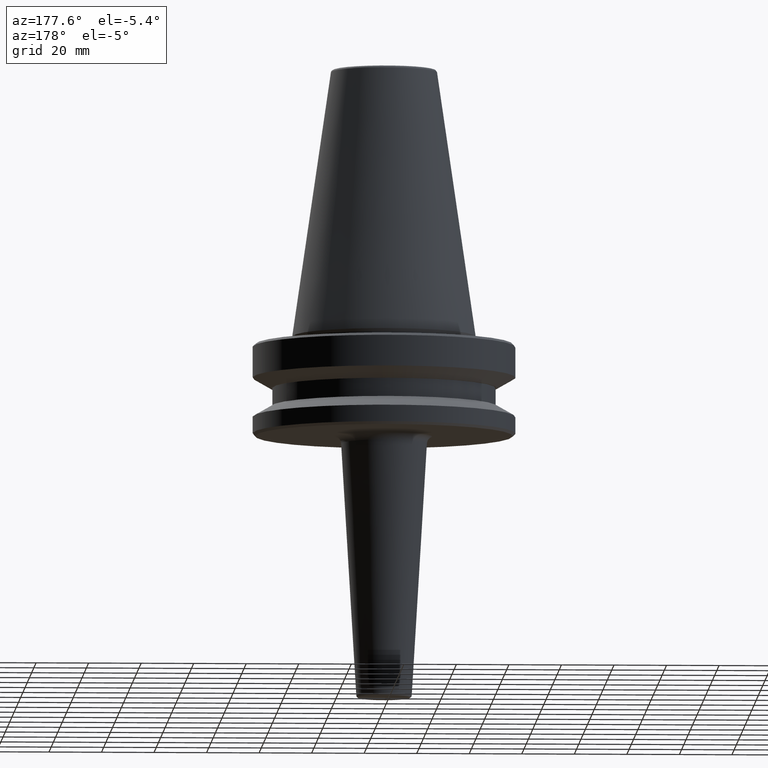
[diagram: clean part render]
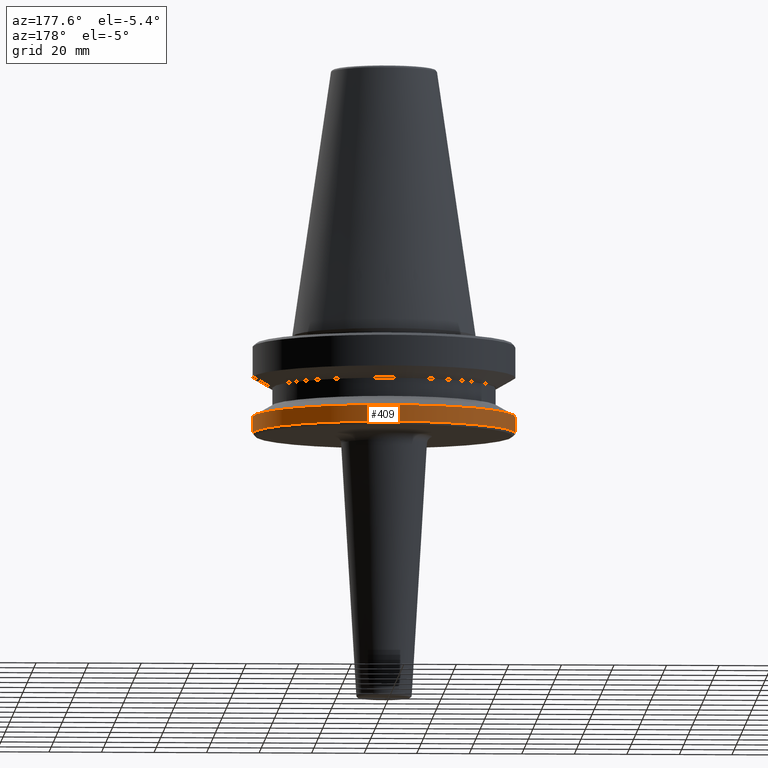
[diagram: same view with one face highlighted and labeled with its STEP entity id]
A machine part, auxiliary view. The second image highlights one B-rep face of the part: STEP entity #409.
In plain terms, the highlighted cylindrical surface (partial cylindrical patch) has radius 50 mm, axis along (-0, -0, 1).
Its self-contained STEP definition (entity closure, byte-faithful):
#22 = VERTEX_POINT ( 'NONE', #421 ) ;
#33 = CARTESIAN_POINT ( 'NONE',  ( 50.00000000000000000, 0.0000000000000000000, -30.69977999677324500 ) ) ;
#58 = VERTEX_POINT ( 'NONE', #114 ) ;
#59 = ORIENTED_EDGE ( 'NONE', *, *, #93, .T. ) ;
#74 = VERTEX_POINT ( 'NONE', #982 ) ;
#89 = DIRECTION ( 'NONE',  ( 1.000000000000000000, 0.0000000000000000000, 0.0000000000000000000 ) ) ;
#93 = EDGE_CURVE ( 'NONE', #74, #22, #795, .T. ) ;
#114 = CARTESIAN_POINT ( 'NONE',  ( -50.00000000000000000, 6.123233995736766100E-015, -30.69977999677324500 ) ) ;
#161 = ORIENTED_EDGE ( 'NONE', *, *, #657, .T. ) ;
#189 = AXIS2_PLACEMENT_3D ( 'NONE', #223, #786, #653 ) ;
#190 = DIRECTION ( 'NONE',  ( -0.0000000000000000000, -0.0000000000000000000, 1.000000000000000000 ) ) ;
#208 = VECTOR ( 'NONE', #361, 1000.000000000000000 ) ;
#221 = EDGE_CURVE ( 'NONE', #74, #709, #535, .T. ) ;
#223 = CARTESIAN_POINT ( 'NONE',  ( 0.0000000000000000000, 0.0000000000000000000, -37.00000000000002100 ) ) ;
#237 = DIRECTION ( 'NONE',  ( -0.0000000000000000000, -0.0000000000000000000, 1.000000000000000000 ) ) ;
#244 = CYLINDRICAL_SURFACE ( 'NONE', #929, 50.00000000000000000 ) ;
#320 = CARTESIAN_POINT ( 'NONE',  ( 50.00000000000000000, 0.0000000000000000000, 124.5046326327850600 ) ) ;
#361 = DIRECTION ( 'NONE',  ( -0.0000000000000000000, -0.0000000000000000000, 1.000000000000000000 ) ) ;
#400 = LINE ( 'NONE', #680, #208 ) ;
#409 = ADVANCED_FACE ( 'NONE', ( #824 ), #244, .T. ) ;
#421 = CARTESIAN_POINT ( 'NONE',  ( -50.00000000000000000, 6.123233995736766100E-015, -37.00000000000002100 ) ) ;
#506 = EDGE_CURVE ( 'NONE', #709, #58, #906, .T. ) ;
#535 = LINE ( 'NONE', #320, #568 ) ;
#568 = VECTOR ( 'NONE', #754, 1000.000000000000000 ) ;
#610 = EDGE_LOOP ( 'NONE', ( #59, #161, #805, #844 ) ) ;
#627 = DIRECTION ( 'NONE',  ( 1.000000000000000000, 0.0000000000000000000, 0.0000000000000000000 ) ) ;
#653 = DIRECTION ( 'NONE',  ( 1.000000000000000000, 0.0000000000000000000, 0.0000000000000000000 ) ) ;
#657 = EDGE_CURVE ( 'NONE', #22, #58, #400, .T. ) ;
#680 = CARTESIAN_POINT ( 'NONE',  ( -50.00000000000000000, 6.123233995736766100E-015, 124.5046326327850600 ) ) ;
#693 = CARTESIAN_POINT ( 'NONE',  ( 0.0000000000000000000, 0.0000000000000000000, 124.5046326327850600 ) ) ;
#709 = VERTEX_POINT ( 'NONE', #33 ) ;
#714 = CARTESIAN_POINT ( 'NONE',  ( 0.0000000000000000000, 0.0000000000000000000, -30.69977999677324500 ) ) ;
#754 = DIRECTION ( 'NONE',  ( -0.0000000000000000000, -0.0000000000000000000, 1.000000000000000000 ) ) ;
#786 = DIRECTION ( 'NONE',  ( -0.0000000000000000000, -0.0000000000000000000, 1.000000000000000000 ) ) ;
#795 = CIRCLE ( 'NONE', #189, 50.00000000000000000 ) ;
#805 = ORIENTED_EDGE ( 'NONE', *, *, #506, .F. ) ;
#824 = FACE_OUTER_BOUND ( 'NONE', #610, .T. ) ;
#838 = AXIS2_PLACEMENT_3D ( 'NONE', #714, #190, #89 ) ;
#844 = ORIENTED_EDGE ( 'NONE', *, *, #221, .F. ) ;
#906 = CIRCLE ( 'NONE', #838, 50.00000000000000000 ) ;
#929 = AXIS2_PLACEMENT_3D ( 'NONE', #693, #237, #627 ) ;
#982 = CARTESIAN_POINT ( 'NONE',  ( 50.00000000000000000, 0.0000000000000000000, -37.00000000000002100 ) ) ;